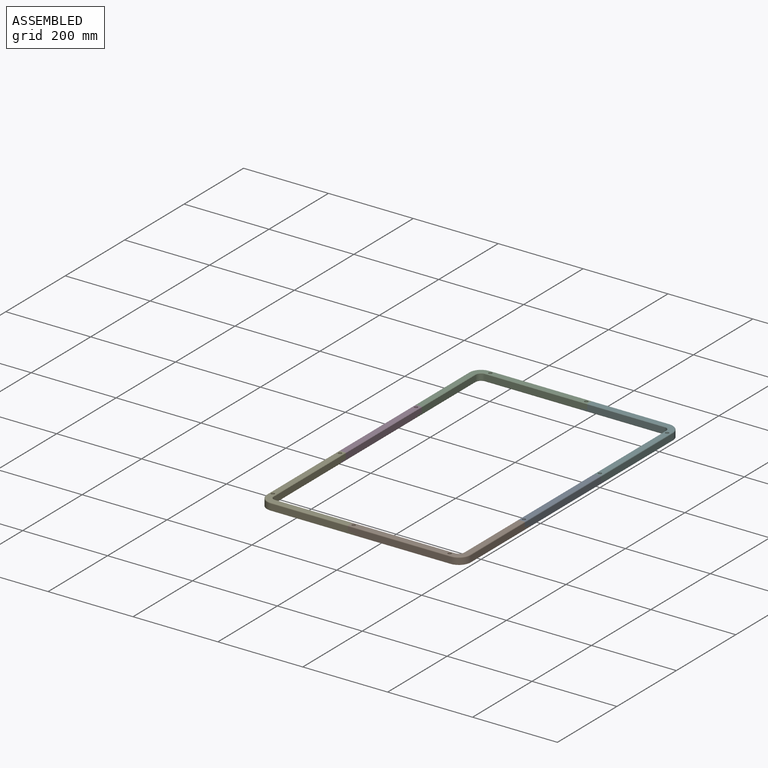
[diagram: assembled view]
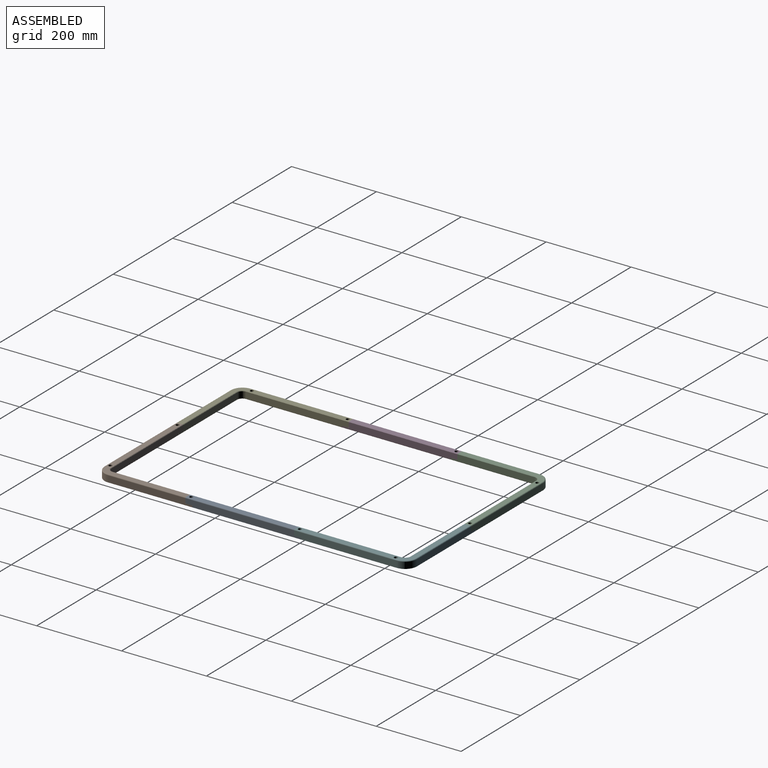
[diagram: assembled view, second angle]
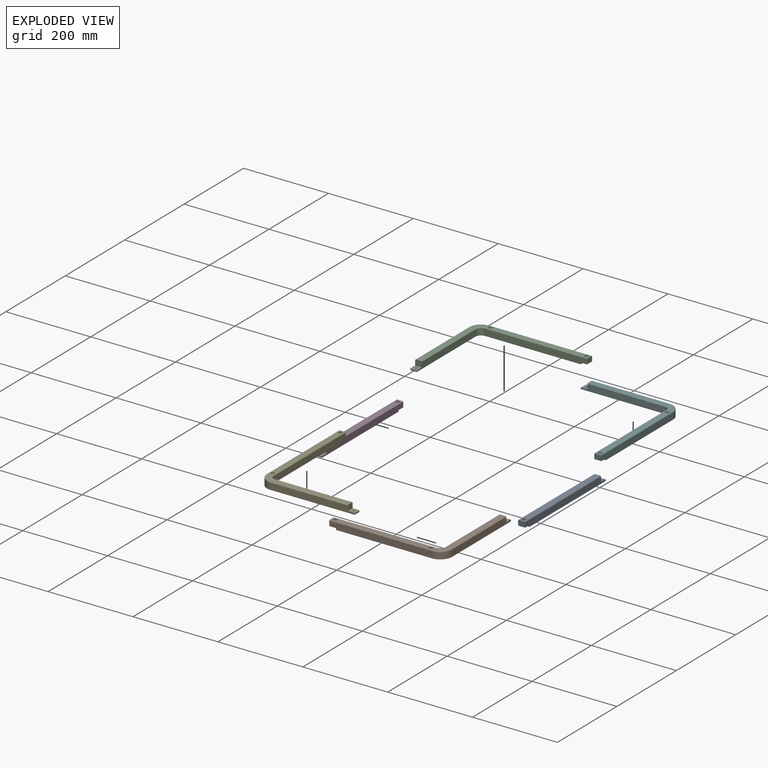
[diagram: exploded view]
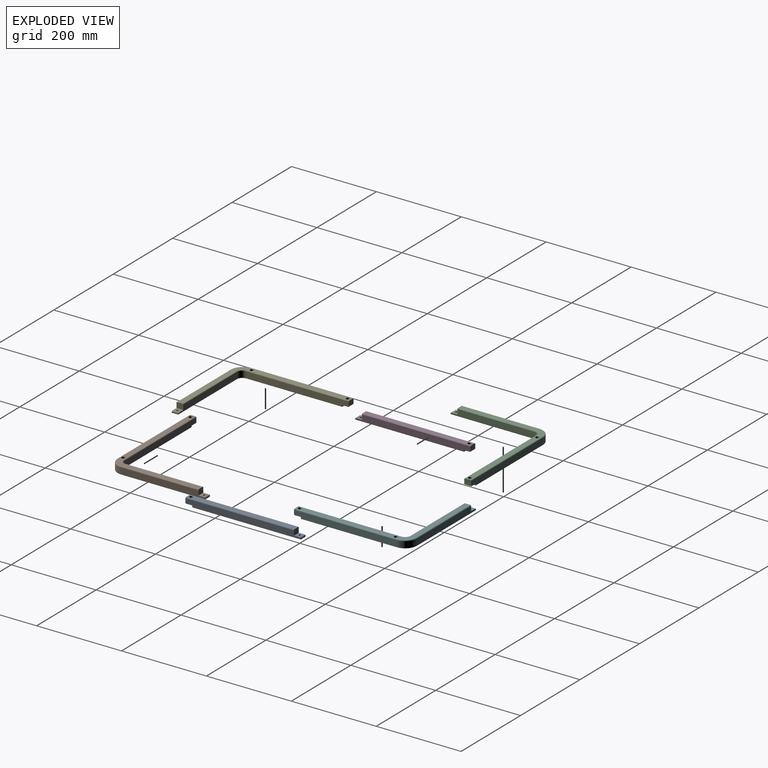
[diagram: exploded view, second angle]
ASSEMBLY  parts=6 mates=14
PART A: 19 faces, bbox 272x16x17 mm
  f0: plane 272x15mm, normal (0,1,0), area 3839mm2, adj f1,f3,f5,f6,f7,f8,f9,f14
  f1: plane 16x13mm, normal (-1,0,0), area 206.6mm2, adj f0,f2,f4,f9,f14,f18
  f2: plane 272x15mm, normal (0,-1,0), area 3839mm2, adj f1,f3,f5,f6,f7,f9,f15,f16
  f3: plane 16x12mm, normal (1,0,0), area 190.6mm2, adj f0,f2,f4,f14,f16,f18
  f4: plane 256x13mm, normal (0,0,1), area 3274.5mm2, adj f1,f3,f12,f14,f18
  f5: plane 16x15mm, normal (0,0,-1), area 224.1mm2, adj f0,f2,f7,f10,f16
  f6: plane 16x3mm, normal (-1,0,0), area 47.5mm2, adj f0,f2,f8,f15,f17
  f7: plane 16x4mm, normal (1,0,0), area 63.5mm2, adj f0,f2,f5,f8,f17
  f8: plane 256x15mm, normal (0,0,-1), area 3824.1mm2, adj f0,f6,f7,f13,f17
  f9: plane 16x15mm, normal (0,0,1), area 224.1mm2, adj f0,f1,f2,f13,f15
  f10: cylinder r=2.25mm len=4.5mm, axis (0,0,1), area 56.5mm2, adj f5,f11
  f11: plane 8.25x8.25mm, normal (0,0,1), area 37.6mm2, adj f10,f12
  f12: cylinder r=4.12mm len=9mm, axis (0,0,1), area 233.3mm2, adj f4,f11
  f13: cylinder r=2.25mm len=4.5mm, axis (0,0,1), area 56.5mm2, adj f8,f9
  f14: cylinder r=2mm len=256mm, axis (1,0,0), area 804.2mm2, adj f0,f1,f3,f4
  f15: plane 16x1mm, normal (-0.71,0,0.71), area 22.6mm2, adj f0,f2,f6,f9
  f16: plane 16x1mm, normal (0.71,0,-0.71), area 22.6mm2, adj f0,f2,f3,f5
  f17: plane 256x1mm, normal (0,-0.71,-0.71), area 362mm2, adj f2,f6,f7,f8
  f18: plane 256x1mm, normal (0,-0.71,0.71), area 362mm2, adj f1,f2,f3,f4
PART B: 32 faces, bbox 272.3x228.3x17 mm
  f0: plane 16x15mm, normal (0,0,-1), area 224.1mm2, adj f4,f6,f12,f17,f30
  f1: plane 16x13mm, normal (0,-1,0), area 206.6mm2, adj f2,f8,f9,f10,f21,f27
  f2: plane 198x15mm, normal (1,0,0), area 2777.5mm2, adj f1,f3,f10,f11,f24,f27,f31
  f3: cylinder r=12mm len=15mm, axis (0,0,-1), area 282.7mm2, adj f2,f4,f25,f28
  f4: plane 242x15mm, normal (0,-1,0), area 3581.5mm2, adj f0,f3,f5,f12,f26,f29,f30
  f5: plane 16x12mm, normal (1,0,0), area 190.6mm2, adj f4,f6,f9,f23,f29,f30
  f6: plane 242x15mm, normal (0,1,0), area 3565.5mm2, adj f0,f5,f7,f12,f13,f23,f30
  f7: cylinder r=28mm len=28mm, axis (0,0,-1), area 659.7mm2, adj f6,f8,f13,f22
  f8: plane 198x15mm, normal (-1,0,0), area 2793.5mm2, adj f1,f7,f10,f11,f13,f21,f31
  f9: plane 268x208mm, normal (0,0,1), area 5803.3mm2, adj f1,f5,f16,f19,f21,f22,f23,f27
  f10: plane 16x15mm, normal (0,0,1), area 224.1mm2, adj f1,f2,f8,f20,f31
  f11: plane 16x3mm, normal (0,-1,0), area 47.5mm2, adj f2,f8,f13,f24,f31
  f12: plane 16x4mm, normal (1,0,0), area 63.5mm2, adj f0,f4,f6,f13,f26
  f13: plane 254x226mm, normal (0,0,-1), area 6811.2mm2, adj f6,f7,f8,f11,f12,f14,f20,f24
  f14: cylinder r=2.25mm len=8mm, axis (0,0,1), area 113.1mm2, adj f13,f15
  f15: plane 8.25x8.25mm, normal (0,0,1), area 37.6mm2, adj f14,f16
  f16: cylinder r=4.12mm len=9mm, axis (0,0,1), area 233.3mm2, adj f9,f15
  f17: cylinder r=2.25mm len=4.5mm, axis (0,0,1), area 56.5mm2, adj f0,f18
  f18: plane 8.25x8.25mm, normal (0,0,1), area 37.6mm2, adj f17,f19
  f19: cylinder r=4.12mm len=9mm, axis (0,0,1), area 233.3mm2, adj f9,f18
  f20: cylinder r=2.25mm len=4.5mm, axis (0,0,1), area 56.5mm2, adj f10,f13
  f21: cylinder r=2mm len=182mm, axis (0,1,0), area 571.8mm2, adj f1,f8,f9,f22
  f22: torus R=26mm, axis (0,0,1), area 134.6mm2, adj f7,f9,f21,f23
  f23: cylinder r=2mm len=242mm, axis (1,0,0), area 760.3mm2, adj f5,f6,f9,f22
  f24: plane 198x1mm, normal (0.71,0,-0.71), area 280mm2, adj f2,f11,f13,f25
  f25: cone r=13mm half-angle=45deg, axis (0,0,-1), area 27.8mm2, adj f3,f13,f24,f26
  f26: plane 226x1mm, normal (0,-0.71,-0.71), area 319.6mm2, adj f4,f12,f13,f25
  f27: plane 182x1mm, normal (0.71,0,0.71), area 257.4mm2, adj f1,f2,f9,f28
  f28: cone r=12mm half-angle=45deg, axis (0,0,1), area 27.8mm2, adj f3,f9,f27,f29
  f29: plane 242x1mm, normal (0,-0.71,0.71), area 342.2mm2, adj f4,f5,f9,f28
  f30: plane 16x1mm, normal (0.71,0,-0.71), area 22.6mm2, adj f0,f4,f5,f6
  f31: plane 16x1mm, normal (0,-0.71,0.71), area 22.6mm2, adj f2,f8,f10,f11
PART C: same geometry as B
PART D: same geometry as A
PART E: same geometry as B
PART F: same geometry as B
PLACE A rot(axis=(0,0,-1),90deg) t=(-8,8,4)mm
PLACE B rot(axis=(0,0,1),180deg) t=(-20,-446,4)mm
PLACE C t=(-444,234,4)mm
PLACE D rot(axis=(0,0,1),90deg) t=(-456,-220,4)mm
PLACE E rot(axis=(0,0,1),90deg) t=(-444,-446,4)mm
PLACE F rot(axis=(0,0,-1),90deg) t=(-20,234,4)mm
MATE cylindrical C.f20 <-> D.f10  axis (0,0,1) through (-464,44,4)mm
MATE planar B.f0 <-> E.f10  axis (0,0,-1) through (-253.46,-466,4)mm
MATE planar C.f2 <-> D.f2  axis (1,0,0) through (-456,141.31,8.4)mm
MATE planar A.f0 <-> B.f8  axis (1,0,0) through (8,-264,10)mm
MATE cylindrical C.f17 <-> F.f20  axis (0,0,-1) through (-210,254,4)mm
MATE planar D.f2 <-> E.f4  axis (1,0,0) through (-456,-79.2,8.5)mm
MATE cylindrical E.f20 <-> B.f17  axis (0,0,1) through (-254,-466,4)mm
MATE planar F.f10 <-> C.f0  axis (0,0,1) through (-209.46,254,4)mm
MATE cylindrical F.f17 <-> A.f13  axis (0,0,1) through (0,0,17)mm
MATE planar A.f5 <-> B.f10  axis (0,0,-1) through (8,-263,4)mm
MATE planar C.f10 <-> D.f5  axis (0,0,1) through (-464,37,4)mm
MATE cylindrical D.f13 <-> E.f17  axis (0,0,1) through (-464,-212,4)mm
MATE cylindrical A.f10 <-> B.f20  axis (0,0,-1) through (0,-256,4)mm
MATE planar A.f9 <-> F.f0  axis (0,0,1) through (0,-0.54,4)mm
